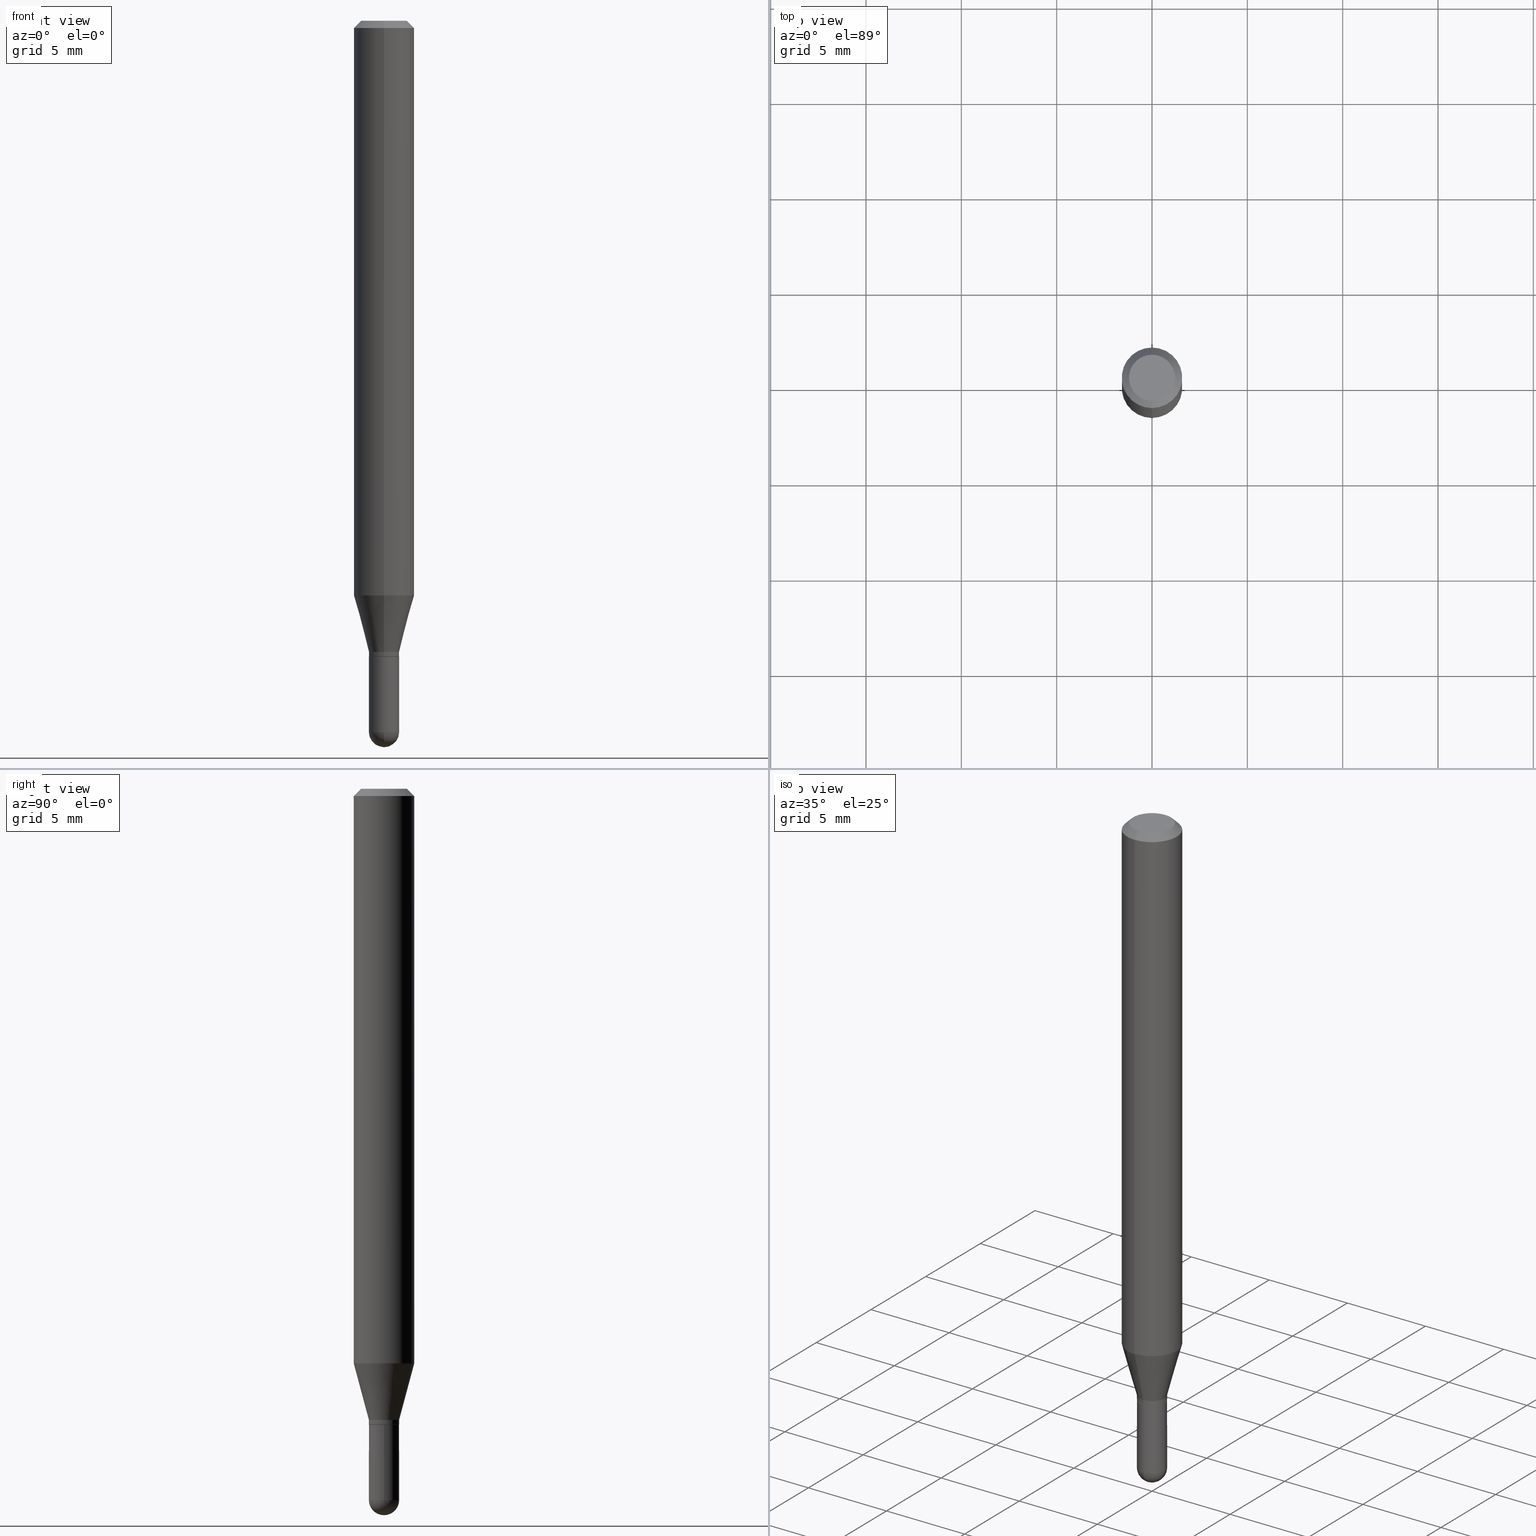
[diagram: canonical four-view strip — front | top / right | iso, engineering-drawing reading convention]
A machine part, canonical four-view strip (front | top / right | iso — engineering-drawing reading convention). The complete STEP part file that produces these views, byte-faithful:
ISO-10303-21;
HEADER;
FILE_DESCRIPTION (( 'STEP AP203' ),
    '1' );
FILE_NAME ('30608.STEP',
    '2024-03-08T15:35:36',
    ( '' ),
    ( '' ),
    'SwSTEP 2.0',
    'SolidWorks 2023',
    '' );
FILE_SCHEMA (( 'CONFIG_CONTROL_DESIGN' ));
ENDSEC;

DATA;
#1 = VERTEX_POINT ( 'NONE', #409 ) ;
#2 =( NAMED_UNIT ( * ) PLANE_ANGLE_UNIT ( ) SI_UNIT ( $, .RADIAN. ) );
#3 = FACE_OUTER_BOUND ( 'NONE', #37, .T. ) ;
#4 = ADVANCED_FACE ( 'NONE', ( #50 ), #368, .T. ) ;
#5 = ORIENTED_EDGE ( 'NONE', *, *, #500, .F. ) ;
#6 = FACE_OUTER_BOUND ( 'NONE', #267, .T. ) ;
#7 = CARTESIAN_POINT ( 'NONE',  ( 3.186393600944843674E-29, -4.549475014519310795E-15, -1.302999999999999936 ) ) ;
#8 = CARTESIAN_POINT ( 'NONE',  ( 4.440892098500914096E-16, 0.06249999999999582279, -1.186373412263473925 ) ) ;
#9 = ORIENTED_EDGE ( 'NONE', *, *, #233, .F. ) ;
#10 = PERSON_AND_ORGANIZATION ( #174, #322 ) ;
#11 = CYLINDRICAL_SURFACE ( 'NONE', #31, 0.03125000000000019429 ) ;
#12 = ORIENTED_EDGE ( 'NONE', *, *, #465, .F. ) ;
#13 = VECTOR ( 'NONE', #492, 39.37007874015748143 ) ;
#14 = DIRECTION ( 'NONE',  ( -2.445468806185136877E-29, 3.491481338843145188E-15, 1.000000000000000000 ) ) ;
#15 = VECTOR ( 'NONE', #259, 39.37007874015749564 ) ;
#16 =( GEOMETRIC_REPRESENTATION_CONTEXT ( 3 ) GLOBAL_UNCERTAINTY_ASSIGNED_CONTEXT ( ( #342 ) ) GLOBAL_UNIT_ASSIGNED_CONTEXT ( ( #274, #2, #34 ) ) REPRESENTATION_CONTEXT ( 'NONE', 'WORKASPACE' ) );
#17 = EDGE_LOOP ( 'NONE', ( #36, #172 ) ) ;
#18 = CARTESIAN_POINT ( 'NONE',  ( 3.186393600944843674E-29, -4.549475014519310795E-15, -1.302999999999999936 ) ) ;
#19 = DIRECTION ( 'NONE',  ( -2.445468806185136597E-29, 3.491481338843145583E-15, 1.000000000000000000 ) ) ;
#20 = DIRECTION ( 'NONE',  ( -6.982962677686265922E-15, -1.000000000000000000, 3.483106191921934765E-15 ) ) ;
#21 = AXIS2_PLACEMENT_3D ( 'NONE', #215, #212, #248 ) ;
#22 = ORIENTED_EDGE ( 'NONE', *, *, #459, .F. ) ;
#23 = APPROVAL_PERSON_ORGANIZATION ( #134, #319, #375 ) ;
#24 = PERSON_AND_ORGANIZATION_ROLE ( 'creator' ) ;
#25 = CARTESIAN_POINT ( 'NONE',  ( 3.589109914430733577E-29, -5.131940237673205338E-15, -1.468750000000000000 ) ) ;
#26 = ORIENTED_EDGE ( 'NONE', *, *, #511, .T. ) ;
#27 = CARTESIAN_POINT ( 'NONE',  ( 3.210847887982025622E-29, -4.584390402197893743E-15, -1.313000000000000389 ) ) ;
#28 = DIRECTION ( 'NONE',  ( -2.445428703718222053E-29, 3.491538767858258180E-15, 1.000000000000000000 ) ) ;
#29 = EDGE_CURVE ( 'NONE', #145, #473, #441, .T. ) ;
#30 = ORIENTED_EDGE ( 'NONE', *, *, #390, .T. ) ;
#31 = AXIS2_PLACEMENT_3D ( 'NONE', #280, #374, #55 ) ;
#32 = CARTESIAN_POINT ( 'NONE',  ( 3.591782309084418816E-29, -5.128113216425869865E-15, -1.468750000000000000 ) ) ;
#33 = CC_DESIGN_PERSON_AND_ORGANIZATION_ASSIGNMENT ( #431, #421, ( #439 ) ) ;
#34 =( NAMED_UNIT ( * ) SI_UNIT ( $, .STERADIAN. ) SOLID_ANGLE_UNIT ( ) );
#35 = ORIENTED_EDGE ( 'NONE', *, *, #455, .F. ) ;
#36 = ORIENTED_EDGE ( 'NONE', *, *, #504, .F. ) ;
#37 = EDGE_LOOP ( 'NONE', ( #137, #479 ) ) ;
#38 = ADVANCED_FACE ( 'NONE', ( #318 ), #402, .T. ) ;
#39 = AXIS2_PLACEMENT_3D ( 'NONE', #185, #218, #108 ) ;
#40 = LINE ( 'NONE', #472, #101 ) ;
#41 = ORIENTED_EDGE ( 'NONE', *, *, #455, .T. ) ;
#42 = ADVANCED_FACE ( 'NONE', ( #323 ), #466, .T. ) ;
#43 = CARTESIAN_POINT ( 'NONE',  ( 3.668143055577308942E-31, -5.237308151787352930E-17, -0.01499999999999990230 ) ) ;
#44 = ORIENTED_EDGE ( 'NONE', *, *, #410, .T. ) ;
#45 = AXIS2_PLACEMENT_3D ( 'NONE', #222, #337, #20 ) ;
#46 = CARTESIAN_POINT ( 'NONE',  ( 4.440892098500919026E-16, 0.06249999999999997224, -0.01500000000000011914 ) ) ;
#47 = CC_DESIGN_PERSON_AND_ORGANIZATION_ASSIGNMENT ( #214, #85, ( #83 ) ) ;
#48 = ORIENTED_EDGE ( 'NONE', *, *, #378, .F. ) ;
#49 = DIRECTION ( 'NONE',  ( 2.438088387897960049E-29, -3.491481338843145188E-15, -1.000000000000000000 ) ) ;
#50 = FACE_OUTER_BOUND ( 'NONE', #255, .T. ) ;
#51 = DIRECTION ( 'NONE',  ( -2.445428703718222053E-29, 3.491538767858258180E-15, 1.000000000000000000 ) ) ;
#52 = ORIENTED_EDGE ( 'NONE', *, *, #403, .T. ) ;
#53 = EDGE_CURVE ( 'NONE', #329, #430, #275, .T. ) ;
#54 = CALENDAR_DATE ( 2024, 8, 3 ) ;
#55 = DIRECTION ( 'NONE',  ( -6.982962677686265922E-15, -1.000000000000000000, 3.491538767858258180E-15 ) ) ;
#56 = CIRCLE ( 'NONE', #477, 0.04750000000000004219 ) ;
#57 = ORIENTED_EDGE ( 'NONE', *, *, #53, .F. ) ;
#58 = DIRECTION ( 'NONE',  ( -4.851104656540959542E-15, -0.7071067811865493491, -0.7071067811865456854 ) ) ;
#59 = DIRECTION ( 'NONE',  ( -6.982962677686265922E-15, -1.000000000000000000, 0.000000000000000000 ) ) ;
#60 = ORIENTED_EDGE ( 'NONE', *, *, #190, .T. ) ;
#61 = LINE ( 'NONE', #103, #332 ) ;
#62 = PERSON_AND_ORGANIZATION_ROLE ( 'classification_officer' ) ;
#63 = DIRECTION ( 'NONE',  ( -6.982962677686265922E-15, -1.000000000000000000, 0.000000000000000000 ) ) ;
#64 = AXIS2_PLACEMENT_3D ( 'NONE', #279, #443, #327 ) ;
#65 = CIRCLE ( 'NONE', #434, 0.03125000000000000694 ) ;
#66 = ADVANCED_FACE ( 'NONE', ( #490 ), #87, .F. ) ;
#67 = DIRECTION ( 'NONE',  ( -2.445428703718222053E-29, 3.491538767858258180E-15, 1.000000000000000000 ) ) ;
#68 = ORIENTED_EDGE ( 'NONE', *, *, #459, .T. ) ;
#69 = EDGE_CURVE ( 'NONE', #240, #179, #372, .T. ) ;
#70 = CARTESIAN_POINT ( 'NONE',  ( -4.364351673553628267E-16, -0.06250000000000417721, -1.186373412263473259 ) ) ;
#71 = ADVANCED_FACE ( 'NONE', ( #380 ), #427, .T. ) ;
#72 = DIRECTION ( 'NONE',  ( -2.445428703718222053E-29, 3.491538767858258180E-15, 1.000000000000000000 ) ) ;
#73 = ORIENTED_EDGE ( 'NONE', *, *, #190, .F. ) ;
#74 = MANIFOLD_SOLID_BREP ( 'Body-Move/Copy2[2]', #469 ) ;
#75 = APPROVAL_PERSON_ORGANIZATION ( #10, #118, #284 ) ;
#76 = ORIENTED_EDGE ( 'NONE', *, *, #511, .F. ) ;
#77 = AXIS2_PLACEMENT_3D ( 'NONE', #429, #228, #388 ) ;
#78 = AXIS2_PLACEMENT_3D ( 'NONE', #446, #82, #203 ) ;
#79 = PERSON_AND_ORGANIZATION ( #174, #322 ) ;
#80 = CARTESIAN_POINT ( 'NONE',  ( -2.182175836776606071E-16, -0.03125000000000523193, -1.468750000000000000 ) ) ;
#81 = ORIENTED_EDGE ( 'NONE', *, *, #114, .T. ) ;
#82 = DIRECTION ( 'NONE',  ( -2.445468806185136597E-29, 3.491481338843145583E-15, 1.000000000000000000 ) ) ;
#83 = PRODUCT_DEFINITION ( 'UNKNOWN', '', #439, #181 ) ;
#84 = CARTESIAN_POINT ( 'NONE',  ( 4.440892098500626162E-16, 0.06250000000000001388, -2.182211729911411609E-16 ) ) ;
#85 = PERSON_AND_ORGANIZATION_ROLE ( 'creator' ) ;
#86 = VECTOR ( 'NONE', #168, 39.37007874015748143 ) ;
#87 = PLANE ( 'NONE',  #353 ) ;
#88 = LOCAL_TIME ( 10, 35, 36.00000000000000000, #415 ) ;
#89 = DIRECTION ( 'NONE',  ( -2.445428703718222053E-29, 3.491538767858258180E-15, 1.000000000000000000 ) ) ;
#90 = ORIENTED_EDGE ( 'NONE', *, *, #500, .T. ) ;
#91 = CARTESIAN_POINT ( 'NONE',  ( 2.220446049250645389E-16, 0.03124999999999564584, -1.302999999999999936 ) ) ;
#92 = LINE ( 'NONE', #494, #246 ) ;
#93 = EDGE_CURVE ( 'NONE', #430, #450, #366, .T. ) ;
#94 = APPROVAL_STATUS ( 'not_yet_approved' ) ;
#95 = PRODUCT_DEFINITION_SHAPE ( 'NONE', 'NONE',  #83 ) ;
#96 = LINE ( 'NONE', #84, #399 ) ;
#97 = DIRECTION ( 'NONE',  ( -6.982962677686265922E-15, -1.000000000000000000, 0.000000000000000000 ) ) ;
#98 = DATE_AND_TIME ( #170, #508 ) ;
#99 = CARTESIAN_POINT ( 'NONE',  ( 3.589109914430733577E-29, -5.131940237673205338E-15, -1.468750000000000000 ) ) ;
#100 = AXIS2_PLACEMENT_3D ( 'NONE', #324, #489, #120 ) ;
#101 = VECTOR ( 'NONE', #146, 39.37007874015748143 ) ;
#102 = EDGE_CURVE ( 'NONE', #498, #450, #127, .T. ) ;
#103 = CARTESIAN_POINT ( 'NONE',  ( -2.147261023388205582E-16, -0.03075000000000458270, -1.313000000000000389 ) ) ;
#104 = DIRECTION ( 'NONE',  ( -2.445428703718222053E-29, 3.491538767858258180E-15, 1.000000000000000000 ) ) ;
#105 = ADVANCED_BREP_SHAPE_REPRESENTATION ( '30608', ( #397, #74, #144 ), #16 ) ;
#106 = VERTEX_POINT ( 'NONE', #453 ) ;
#107 = DATE_AND_TIME ( #384, #156 ) ;
#108 = DIRECTION ( 'NONE',  ( 1.000000000000000000, -6.982962677686261189E-15, 0.000000000000000000 ) ) ;
#109 = AXIS2_PLACEMENT_3D ( 'NONE', #164, #49, #497 ) ;
#110 = DIRECTION ( 'NONE',  ( -1.000000000000000000, 6.982962677686265922E-15, -4.883557194083112340E-29 ) ) ;
#111 = CARTESIAN_POINT ( 'NONE',  ( 3.210847887982025622E-29, -4.584390402197893743E-15, -1.313000000000000389 ) ) ;
#112 = ORIENTED_EDGE ( 'NONE', *, *, #69, .F. ) ;
#113 = CONICAL_SURFACE ( 'NONE', #294, 0.03125000000000019429, 0.2617993877991501295 ) ;
#114 = EDGE_CURVE ( 'NONE', #179, #329, #285, .T. ) ;
#115 = ORIENTED_EDGE ( 'NONE', *, *, #252, .T. ) ;
#116 = AXIS2_PLACEMENT_3D ( 'NONE', #7, #488, #161 ) ;
#117 = ORIENTED_EDGE ( 'NONE', *, *, #474, .F. ) ;
#118 = APPROVAL ( #163, 'UNSPECIFIED' ) ;
#119 = PERSON_AND_ORGANIZATION_ROLE ( 'design_owner' ) ;
#120 = DIRECTION ( 'NONE',  ( 6.982962677686265922E-15, 1.000000000000000000, -3.491538767858258180E-15 ) ) ;
#121 = ORIENTED_EDGE ( 'NONE', *, *, #474, .T. ) ;
#122 = APPLICATION_PROTOCOL_DEFINITION ( 'international standard', 'config_control_design', 1994, #277 ) ;
#123 = DIRECTION ( 'NONE',  ( -2.445468806185136597E-29, 3.491481338843145583E-15, 1.000000000000000000 ) ) ;
#124 = VECTOR ( 'NONE', #460, 39.37007874015748143 ) ;
#125 = DATE_AND_TIME ( #54, #88 ) ;
#126 = CIRCLE ( 'NONE', #21, 0.06250000000000000000 ) ;
#127 = LINE ( 'NONE', #211, #484 ) ;
#128 = CARTESIAN_POINT ( 'NONE',  ( 2.220446049250678915E-16, 0.03124999999999497277, -1.468750000000000000 ) ) ;
#129 = DIRECTION ( 'NONE',  ( 1.000000000000000000, 0.000000000000000000, 0.000000000000000000 ) ) ;
#130 = CARTESIAN_POINT ( 'NONE',  ( -0.03125000000000000000, 2.220446049250313081E-16, -1.537167215704658057E-30 ) ) ;
#131 = VERTEX_POINT ( 'NONE', #173 ) ;
#132 = SPHERICAL_SURFACE ( 'NONE', #256, 0.03125000000000019429 ) ;
#133 = DIRECTION ( 'NONE',  ( -6.982962677686265133E-15, -1.000000000000000000, 3.491538767858257785E-15 ) ) ;
#134 = PERSON_AND_ORGANIZATION ( #174, #322 ) ;
#135 = CARTESIAN_POINT ( 'NONE',  ( -2.396082165746635668E-45, 3.421082675588868902E-31, 9.798209050639849508E-17 ) ) ;
#136 = FACE_OUTER_BOUND ( 'NONE', #452, .T. ) ;
#137 = ORIENTED_EDGE ( 'NONE', *, *, #192, .T. ) ;
#138 = CARTESIAN_POINT ( 'NONE',  ( 3.186393600944843674E-29, -4.549475014519310795E-15, -1.302999999999999936 ) ) ;
#139 = DIRECTION ( 'NONE',  ( -2.445428703718222053E-29, 3.491538767858258180E-15, 1.000000000000000000 ) ) ;
#140 = AXIS2_PLACEMENT_3D ( 'NONE', #201, #356, #405 ) ;
#141 = ADVANCED_FACE ( 'NONE', ( #416 ), #132, .T. ) ;
#142 = CIRCLE ( 'NONE', #320, 0.03125000000000019429 ) ;
#143 = ORIENTED_EDGE ( 'NONE', *, *, #410, .F. ) ;
#144 = AXIS2_PLACEMENT_3D ( 'NONE', #480, #330, #129 ) ;
#145 = VERTEX_POINT ( 'NONE', #335 ) ;
#146 = DIRECTION ( 'NONE',  ( -2.445468806185136877E-29, 3.491481338843145188E-15, 1.000000000000000000 ) ) ;
#147 = ORIENTED_EDGE ( 'NONE', *, *, #378, .T. ) ;
#148 = VECTOR ( 'NONE', #139, 39.37007874015748143 ) ;
#149 = SECURITY_CLASSIFICATION ( '', '', #463 ) ;
#150 = ADVANCED_FACE ( 'NONE', ( #3 ), #481, .F. ) ;
#151 = LENGTH_MEASURE_WITH_UNIT ( LENGTH_MEASURE( 0.02539999999999999897 ), #200 );
#152 = VERTEX_POINT ( 'NONE', #80 ) ;
#153 = ORIENTED_EDGE ( 'NONE', *, *, #343, .F. ) ;
#154 = EDGE_LOOP ( 'NONE', ( #491, #68, #418, #57 ) ) ;
#155 = CIRCLE ( 'NONE', #458, 0.03125000000000019429 ) ;
#156 = LOCAL_TIME ( 10, 35, 36.00000000000000000, #223 ) ;
#157 = DIRECTION ( 'NONE',  ( -2.445428703718222053E-29, 3.491538767858258180E-15, 1.000000000000000000 ) ) ;
#158 = PLANE ( 'NONE',  #100 ) ;
#159 = DIRECTION ( 'NONE',  ( 1.000000000000000000, -6.982962677686265922E-15, 4.883557194083112901E-29 ) ) ;
#160 = COORDINATED_UNIVERSAL_TIME_OFFSET ( 5, 0, .BEHIND. ) ;
#161 = DIRECTION ( 'NONE',  ( -6.982962677686265922E-15, -1.000000000000000000, 0.000000000000000000 ) ) ;
#162 = CARTESIAN_POINT ( 'NONE',  ( 0.03125000000000000694, -5.074431690841155672E-15, -1.468750000000000000 ) ) ;
#163 = APPROVAL_STATUS ( 'not_yet_approved' ) ;
#164 = CARTESIAN_POINT ( 'NONE',  ( 2.182175836777279315E-16, 0.03124999999999541686, -1.313000000000000167 ) ) ;
#165 = ORIENTED_EDGE ( 'NONE', *, *, #401, .T. ) ;
#166 = CIRCLE ( 'NONE', #467, 0.03125000000000019429 ) ;
#167 = CARTESIAN_POINT ( 'NONE',  ( 3.668143055577308942E-31, -5.237308151787352930E-17, -0.01499999999999990230 ) ) ;
#168 = DIRECTION ( 'NONE',  ( 4.937700262164543309E-15, 0.7071067811865444641, -0.7071067811865505703 ) ) ;
#169 = CLOSED_SHELL ( 'NONE', ( #436, #141, #150, #398, #4 ) ) ;
#170 = CALENDAR_DATE ( 2024, 8, 3 ) ;
#171 = DIRECTION ( 'NONE',  ( 5.024295867788190974E-15, 0.7071067811865681119, 0.7071067811865270336 ) ) ;
#172 = ORIENTED_EDGE ( 'NONE', *, *, #29, .F. ) ;
#173 = CARTESIAN_POINT ( 'NONE',  ( 0.03125000000000000000, -4.802532581578746433E-15, -1.313000000000000167 ) ) ;
#174 = PERSON ( 'UNSPECIFIED', 'UNSPECIFIED', 'UNSPECIFIED', ('UNSPECIFIED'), ('UNSPECIFIED'), ('UNSPECIFIED') ) ;
#175 = CARTESIAN_POINT ( 'NONE',  ( 3.589109914430733577E-29, -5.131940237673205338E-15, -1.468750000000000000 ) ) ;
#176 = EDGE_CURVE ( 'NONE', #430, #329, #126, .T. ) ;
#177 = DIRECTION ( 'NONE',  ( 1.000000000000000000, -6.982962677686261189E-15, 0.000000000000000000 ) ) ;
#178 = CIRCLE ( 'NONE', #39, 0.03125000000000000694 ) ;
#179 = VERTEX_POINT ( 'NONE', #363 ) ;
#180 = CARTESIAN_POINT ( 'NONE',  ( 3.591782309084418816E-29, -5.128113216425869865E-15, -1.468750000000000000 ) ) ;
#181 = DESIGN_CONTEXT ( 'detailed design', #277, 'design' ) ;
#182 = ADVANCED_FACE ( 'NONE', ( #442 ), #11, .T. ) ;
#183 = DIRECTION ( 'NONE',  ( 1.000000000000000000, -6.982962677686261189E-15, 0.000000000000000000 ) ) ;
#184 = VERTEX_POINT ( 'NONE', #328 ) ;
#185 = CARTESIAN_POINT ( 'NONE',  ( 3.591782309084418816E-29, -5.128113216425869865E-15, -1.468750000000000000 ) ) ;
#186 = VECTOR ( 'NONE', #14, 39.37007874015748143 ) ;
#187 = ORIENTED_EDGE ( 'NONE', *, *, #465, .T. ) ;
#188 = DIRECTION ( 'NONE',  ( -2.445468806185136597E-29, 3.491481338843145583E-15, 1.000000000000000000 ) ) ;
#189 = VERTEX_POINT ( 'NONE', #209 ) ;
#190 = EDGE_CURVE ( 'NONE', #317, #106, #207, .T. ) ;
#191 = ORIENTED_EDGE ( 'NONE', *, *, #476, .T. ) ;
#192 = EDGE_CURVE ( 'NONE', #131, #106, #311, .T. ) ;
#193 = DIRECTION ( 'NONE',  ( -6.982962677686265922E-15, -1.000000000000000000, 3.483106191921934765E-15 ) ) ;
#194 = DIRECTION ( 'NONE',  ( -2.445428703718221492E-29, 3.491538767858258180E-15, 1.000000000000000000 ) ) ;
#195 = AXIS2_PLACEMENT_3D ( 'NONE', #167, #422, #297 ) ;
#196 = AXIS2_PLACEMENT_3D ( 'NONE', #43, #358, #204 ) ;
#197 = AXIS2_PLACEMENT_3D ( 'NONE', #111, #315, #268 ) ;
#198 = CARTESIAN_POINT ( 'NONE',  ( 3.209625173630166357E-29, -4.582644632813964477E-15, -1.312500000000000222 ) ) ;
#199 = DIRECTION ( 'NONE',  ( -6.982962677686265922E-15, -1.000000000000000000, 0.000000000000000000 ) ) ;
#200 =( LENGTH_UNIT ( ) NAMED_UNIT ( * ) SI_UNIT ( $, .METRE. ) );
#201 = CARTESIAN_POINT ( 'NONE',  ( 0.000000000000000000, 0.000000000000000000, 0.000000000000000000 ) ) ;
#202 = CC_DESIGN_PERSON_AND_ORGANIZATION_ASSIGNMENT ( #79, #119, ( #291 ) ) ;
#203 = DIRECTION ( 'NONE',  ( 1.000000000000000000, -6.982962677686266711E-15, 4.876176775795935793E-29 ) ) ;
#204 = DIRECTION ( 'NONE',  ( 6.982962677686265922E-15, 1.000000000000000000, -3.483106191921934765E-15 ) ) ;
#205 = ORIENTED_EDGE ( 'NONE', *, *, #176, .T. ) ;
#206 = CIRCLE ( 'NONE', #224, 0.03125000000000019429 ) ;
#207 = LINE ( 'NONE', #130, #186 ) ;
#208 = PERSON_AND_ORGANIZATION ( #174, #322 ) ;
#209 = CARTESIAN_POINT ( 'NONE',  ( 3.664194617297177037E-29, -5.242962540135721781E-15, -1.500000000000000222 ) ) ;
#210 = ADVANCED_FACE ( 'NONE', ( #454 ), #113, .T. ) ;
#211 = CARTESIAN_POINT ( 'NONE',  ( -4.287811248607204268E-16, -0.06250000000000006939, -0.01499999999999968373 ) ) ;
#212 = DIRECTION ( 'NONE',  ( -2.445428703718222053E-29, 3.491538767858258180E-15, 1.000000000000000000 ) ) ;
#213 = EDGE_LOOP ( 'NONE', ( #437, #289, #187, #9 ) ) ;
#214 = PERSON_AND_ORGANIZATION ( #174, #322 ) ;
#215 = CARTESIAN_POINT ( 'NONE',  ( 2.901191595677230162E-29, -4.142268762074205999E-15, -1.186373412263473703 ) ) ;
#216 = AXIS2_PLACEMENT_3D ( 'NONE', #241, #157, #199 ) ;
#217 = ORIENTED_EDGE ( 'NONE', *, *, #357, .F. ) ;
#218 = DIRECTION ( 'NONE',  ( -2.445468806185136597E-29, 3.491481338843145583E-15, 1.000000000000000000 ) ) ;
#219 = DIMENSIONAL_EXPONENTS ( 1.000000000000000000, 0.000000000000000000, 0.000000000000000000, 0.000000000000000000, 0.000000000000000000, 0.000000000000000000, 0.000000000000000000 ) ;
#220 = EDGE_CURVE ( 'NONE', #145, #240, #92, .T. ) ;
#221 = APPROVAL_DATE_TIME ( #98, #319 ) ;
#222 = CARTESIAN_POINT ( 'NONE',  ( 3.668143055577308942E-31, -5.237308151787352930E-17, -0.01499999999999990230 ) ) ;
#223 = COORDINATED_UNIVERSAL_TIME_OFFSET ( 5, 0, .BEHIND. ) ;
#224 = AXIS2_PLACEMENT_3D ( 'NONE', #138, #67, #301 ) ;
#225 = DIRECTION ( 'NONE',  ( -2.445468806185136597E-29, 3.491481338843145583E-15, 1.000000000000000000 ) ) ;
#226 = CC_DESIGN_SECURITY_CLASSIFICATION ( #149, ( #439 ) ) ;
#227 = ORIENTED_EDGE ( 'NONE', *, *, #373, .T. ) ;
#228 = DIRECTION ( 'NONE',  ( -2.445428703718222053E-29, 3.491538767858258180E-15, 1.000000000000000000 ) ) ;
#229 = ORIENTED_EDGE ( 'NONE', *, *, #352, .T. ) ;
#230 = CARTESIAN_POINT ( 'NONE',  ( 3.186393600944843674E-29, -4.549475014519310795E-15, -1.302999999999999936 ) ) ;
#231 = ORIENTED_EDGE ( 'NONE', *, *, #252, .F. ) ;
#232 = CARTESIAN_POINT ( 'NONE',  ( 3.589109914430733577E-29, -5.131940237673205338E-15, -1.468750000000000000 ) ) ;
#233 = EDGE_CURVE ( 'NONE', #1, #325, #408, .T. ) ;
#234 = CONICAL_SURFACE ( 'NONE', #507, 0.03074999999999999956, 0.7853981633974739252 ) ;
#235 = VERTEX_POINT ( 'NONE', #128 ) ;
#236 = EDGE_LOOP ( 'NONE', ( #35, #44, #475, #364 ) ) ;
#237 = CARTESIAN_POINT ( 'NONE',  ( 3.668143055577308942E-31, -5.237308151787352930E-17, -0.01499999999999990230 ) ) ;
#238 = EDGE_LOOP ( 'NONE', ( #52, #81, #302, #351 ) ) ;
#239 = AXIS2_PLACEMENT_3D ( 'NONE', #263, #104, #63 ) ;
#240 = VERTEX_POINT ( 'NONE', #286 ) ;
#241 = CARTESIAN_POINT ( 'NONE',  ( 3.210847887982025622E-29, -4.584390402197893743E-15, -1.313000000000000389 ) ) ;
#242 = ORIENTED_EDGE ( 'NONE', *, *, #69, .T. ) ;
#243 = EDGE_LOOP ( 'NONE', ( #143, #41, #440, #310 ) ) ;
#244 = DIRECTION ( 'NONE',  ( -6.982962677686265922E-15, -1.000000000000000000, 0.000000000000000000 ) ) ;
#245 = CARTESIAN_POINT ( 'NONE',  ( 0.000000000000000000, 0.000000000000000000, 0.000000000000000000 ) ) ;
#246 = VECTOR ( 'NONE', #171, 39.37007874015748143 ) ;
#247 = CARTESIAN_POINT ( 'NONE',  ( 3.210847887982025622E-29, -4.584390402197893743E-15, -1.313000000000000389 ) ) ;
#248 = DIRECTION ( 'NONE',  ( -6.982962677686265922E-15, -1.000000000000000000, 4.370956789862821150E-15 ) ) ;
#249 = ORIENTED_EDGE ( 'NONE', *, *, #102, .F. ) ;
#250 = CYLINDRICAL_SURFACE ( 'NONE', #354, 0.06250000000000001388 ) ;
#251 = ORIENTED_EDGE ( 'NONE', *, *, #424, .T. ) ;
#252 = EDGE_CURVE ( 'NONE', #329, #325, #96, .T. ) ;
#253 = DIRECTION ( 'NONE',  ( 1.839019923739599526E-15, 0.2588190451025248473, 0.9659258262890673130 ) ) ;
#254 = CYLINDRICAL_SURFACE ( 'NONE', #283, 0.03125000000000019429 ) ;
#255 = EDGE_LOOP ( 'NONE', ( #73, #191, #30, #121, #153 ) ) ;
#256 = AXIS2_PLACEMENT_3D ( 'NONE', #232, #159, #97 ) ;
#257 = APPROVAL_STATUS ( 'not_yet_approved' ) ;
#258 = AXIS2_PLACEMENT_3D ( 'NONE', #237, #72, #193 ) ;
#259 = DIRECTION ( 'NONE',  ( -1.807323732225328562E-15, -0.2588190451025179639, 0.9659258262890689783 ) ) ;
#260 = CARTESIAN_POINT ( 'NONE',  ( -4.364351673553916694E-16, -0.06250000000000001388, 2.182211729911411609E-16 ) ) ;
#261 = DIRECTION ( 'NONE',  ( 1.000000000000000000, -7.105427357601001070E-15, 4.926315508542082329E-29 ) ) ;
#262 = PERSON_AND_ORGANIZATION ( #174, #322 ) ;
#263 = CARTESIAN_POINT ( 'NONE',  ( 3.209625173630166357E-29, -4.582644632813964477E-15, -1.312500000000000222 ) ) ;
#264 = AXIS2_PLACEMENT_3D ( 'NONE', #266, #391, #426 ) ;
#265 = CARTESIAN_POINT ( 'NONE',  ( -2.182175836776652910E-16, -0.03125000000000474620, -1.302999999999999936 ) ) ;
#266 = CARTESIAN_POINT ( 'NONE',  ( 3.210900542521084585E-29, -4.584314997901050598E-15, -1.313000000000000167 ) ) ;
#267 = EDGE_LOOP ( 'NONE', ( #147, #251 ) ) ;
#268 = DIRECTION ( 'NONE',  ( -6.982962677686265922E-15, -1.000000000000000000, 0.000000000000000000 ) ) ;
#269 = ORIENTED_EDGE ( 'NONE', *, *, #220, .T. ) ;
#270 = ORIENTED_EDGE ( 'NONE', *, *, #93, .F. ) ;
#271 = CC_DESIGN_DATE_AND_TIME_ASSIGNMENT ( #107, #456, ( #149 ) ) ;
#272 = DIRECTION ( 'NONE',  ( 1.000000000000000000, -6.982962677686261189E-15, 0.000000000000000000 ) ) ;
#273 = CIRCLE ( 'NONE', #45, 0.06250000000000001388 ) ;
#274 =( CONVERSION_BASED_UNIT ( 'INCH', #151 ) LENGTH_UNIT ( ) NAMED_UNIT ( #219 ) );
#275 = CIRCLE ( 'NONE', #64, 0.06250000000000000000 ) ;
#276 = AXIS2_PLACEMENT_3D ( 'NONE', #432, #19, #470 ) ;
#277 = APPLICATION_CONTEXT ( 'configuration controlled 3d designs of mechanical parts and assemblies' ) ;
#278 = ADVANCED_FACE ( 'NONE', ( #334 ), #250, .T. ) ;
#279 = CARTESIAN_POINT ( 'NONE',  ( 2.901191595677230162E-29, -4.142268762074205999E-15, -1.186373412263473703 ) ) ;
#280 = CARTESIAN_POINT ( 'NONE',  ( 0.000000000000000000, 0.000000000000000000, 0.000000000000000000 ) ) ;
#281 = FACE_OUTER_BOUND ( 'NONE', #341, .T. ) ;
#282 = ORIENTED_EDGE ( 'NONE', *, *, #93, .T. ) ;
#283 = AXIS2_PLACEMENT_3D ( 'NONE', #245, #89, #417 ) ;
#284 = APPROVAL_ROLE ( '' ) ;
#285 = LINE ( 'NONE', #91, #370 ) ;
#286 = CARTESIAN_POINT ( 'NONE',  ( 2.220446049250639965E-16, 0.03124999999999550360, -1.312500000000000222 ) ) ;
#287 = APPROVAL_ROLE ( '' ) ;
#288 = DIRECTION ( 'NONE',  ( -2.445428703718222053E-29, 3.491538767858258180E-15, 1.000000000000000000 ) ) ;
#289 = ORIENTED_EDGE ( 'NONE', *, *, #102, .T. ) ;
#290 = ADVANCED_FACE ( 'NONE', ( #281 ), #383, .T. ) ;
#291 = PRODUCT ( '30608', '30608', '', ( #483 ) ) ;
#292 = COORDINATED_UNIVERSAL_TIME_OFFSET ( 5, 0, .BEHIND. ) ;
#293 = COORDINATED_UNIVERSAL_TIME_OFFSET ( 5, 0, .BEHIND. ) ;
#294 = AXIS2_PLACEMENT_3D ( 'NONE', #18, #331, #444 ) ;
#295 = CARTESIAN_POINT ( 'NONE',  ( 3.591782309084418816E-29, -5.128113216425869865E-15, -1.468750000000000000 ) ) ;
#296 = CALENDAR_DATE ( 2024, 8, 3 ) ;
#297 = DIRECTION ( 'NONE',  ( 6.982962677686265922E-15, 1.000000000000000000, -3.483106191921934765E-15 ) ) ;
#298 = FACE_OUTER_BOUND ( 'NONE', #411, .T. ) ;
#299 = EDGE_LOOP ( 'NONE', ( #249, #48, #487, #26 ) ) ;
#300 = DATE_AND_TIME ( #296, #486 ) ;
#301 = DIRECTION ( 'NONE',  ( -6.982962677686265922E-15, -1.000000000000000000, 0.000000000000000000 ) ) ;
#302 = ORIENTED_EDGE ( 'NONE', *, *, #176, .F. ) ;
#303 = CIRCLE ( 'NONE', #264, 0.03125000000000000000 ) ;
#304 = DIRECTION ( 'NONE',  ( 7.105427357601001859E-15, 1.000000000000000000, 0.000000000000000000 ) ) ;
#305 = ADVANCED_FACE ( 'NONE', ( #447 ), #254, .T. ) ;
#306 = CARTESIAN_POINT ( 'NONE',  ( -3.773273898774342241E-16, -0.04750000000000004219, 2.638301819796658740E-16 ) ) ;
#307 = EDGE_LOOP ( 'NONE', ( #205, #115, #12, #270 ) ) ;
#308 = ADVANCED_FACE ( 'NONE', ( #404 ), #438, .T. ) ;
#309 = ORIENTED_EDGE ( 'NONE', *, *, #357, .T. ) ;
#310 = ORIENTED_EDGE ( 'NONE', *, *, #373, .F. ) ;
#311 = CIRCLE ( 'NONE', #371, 0.03125000000000000000 ) ;
#312 = APPROVAL_PERSON_ORGANIZATION ( #208, #482, #287 ) ;
#313 = LOCAL_TIME ( 10, 35, 36.00000000000000000, #160 ) ;
#314 = ORIENTED_EDGE ( 'NONE', *, *, #379, .T. ) ;
#315 = DIRECTION ( 'NONE',  ( -2.445428703718222053E-29, 3.491538767858258180E-15, 1.000000000000000000 ) ) ;
#316 = ADVANCED_FACE ( 'NONE', ( #6 ), #158, .F. ) ;
#317 = VERTEX_POINT ( 'NONE', #406 ) ;
#318 = FACE_OUTER_BOUND ( 'NONE', #307, .T. ) ;
#319 = APPROVAL ( #257, 'UNSPECIFIED' ) ;
#320 = AXIS2_PLACEMENT_3D ( 'NONE', #175, #110, #509 ) ;
#321 = ORIENTED_EDGE ( 'NONE', *, *, #53, .T. ) ;
#322 = ORGANIZATION ( 'UNSPECIFIED', 'UNSPECIFIED', '' ) ;
#323 = FACE_OUTER_BOUND ( 'NONE', #238, .T. ) ;
#324 = CARTESIAN_POINT ( 'NONE',  ( 3.316907271900979054E-16, 0.04750000000000004219, -1.168570462200681560E-16 ) ) ;
#325 = VERTEX_POINT ( 'NONE', #46 ) ;
#326 = CC_DESIGN_DATE_AND_TIME_ASSIGNMENT ( #407, #365, ( #83 ) ) ;
#327 = DIRECTION ( 'NONE',  ( -6.982962677686265922E-15, -1.000000000000000000, 4.370956789862821150E-15 ) ) ;
#328 = CARTESIAN_POINT ( 'NONE',  ( -2.182175836776652910E-16, -0.03125000000000474620, -1.302999999999999936 ) ) ;
#329 = VERTEX_POINT ( 'NONE', #8 ) ;
#330 = DIRECTION ( 'NONE',  ( 0.000000000000000000, 0.000000000000000000, 1.000000000000000000 ) ) ;
#331 = DIRECTION ( 'NONE',  ( -2.445428703718222053E-29, 3.491538767858258180E-15, 1.000000000000000000 ) ) ;
#332 = VECTOR ( 'NONE', #457, 39.37007874015748143 ) ;
#333 = AXIS2_PLACEMENT_3D ( 'NONE', #198, #396, #350 ) ;
#334 = FACE_OUTER_BOUND ( 'NONE', #413, .T. ) ;
#335 = CARTESIAN_POINT ( 'NONE',  ( 2.202682480856637938E-16, 0.03074999999999541295, -1.313000000000000389 ) ) ;
#336 = DIRECTION ( 'NONE',  ( 1.000000000000000000, -6.982962677686262766E-15, 0.000000000000000000 ) ) ;
#337 = DIRECTION ( 'NONE',  ( -2.445428703718222053E-29, 3.491538767858258180E-15, 1.000000000000000000 ) ) ;
#338 = VERTEX_POINT ( 'NONE', #162 ) ;
#339 = CARTESIAN_POINT ( 'NONE',  ( 2.220446049250326886E-16, 0.03125000000000019429, -1.091105864955712460E-16 ) ) ;
#340 = LINE ( 'NONE', #265, #15 ) ;
#341 = EDGE_LOOP ( 'NONE', ( #433, #269, #5, #395 ) ) ;
#342 = UNCERTAINTY_MEASURE_WITH_UNIT (LENGTH_MEASURE( 1.000000000000000082E-05 ), #274, 'distance_accuracy_value', 'NONE');
#343 = EDGE_CURVE ( 'NONE', #106, #131, #303, .T. ) ;
#344 = APPROVAL_DATE_TIME ( #300, #118 ) ;
#345 = FACE_OUTER_BOUND ( 'NONE', #243, .T. ) ;
#346 = DIRECTION ( 'NONE',  ( -2.445428703718222053E-29, 3.491538767858258180E-15, 1.000000000000000000 ) ) ;
#347 = APPLICATION_CONTEXT ( 'configuration controlled 3d designs of mechanical parts and assemblies' ) ;
#348 = LINE ( 'NONE', #461, #148 ) ;
#349 = VERTEX_POINT ( 'NONE', #501 ) ;
#350 = DIRECTION ( 'NONE',  ( -6.982962677686265922E-15, -1.000000000000000000, 0.000000000000000000 ) ) ;
#351 = ORIENTED_EDGE ( 'NONE', *, *, #414, .F. ) ;
#352 = EDGE_CURVE ( 'NONE', #338, #235, #178, .T. ) ;
#353 = AXIS2_PLACEMENT_3D ( 'NONE', #247, #194, #376 ) ;
#354 = AXIS2_PLACEMENT_3D ( 'NONE', #412, #51, #133 ) ;
#355 = APPLICATION_PROTOCOL_DEFINITION ( 'international standard', 'config_control_design', 1994, #347 ) ;
#356 = DIRECTION ( 'NONE',  ( -2.445428703718222053E-29, 3.491538767858258180E-15, 1.000000000000000000 ) ) ;
#357 = EDGE_CURVE ( 'NONE', #240, #349, #485, .T. ) ;
#358 = DIRECTION ( 'NONE',  ( 2.445428703718222053E-29, -3.491538767858258180E-15, -1.000000000000000000 ) ) ;
#359 = CC_DESIGN_PERSON_AND_ORGANIZATION_ASSIGNMENT ( #262, #62, ( #149 ) ) ;
#360 = AXIS2_PLACEMENT_3D ( 'NONE', #25, #505, #464 ) ;
#361 = CC_DESIGN_APPROVAL ( #319, ( #149 ) ) ;
#362 = APPROVAL_DATE_TIME ( #125, #482 ) ;
#363 = CARTESIAN_POINT ( 'NONE',  ( 3.330669073875781221E-16, 0.03124999999999564237, -1.302999999999999936 ) ) ;
#364 = ORIENTED_EDGE ( 'NONE', *, *, #390, .F. ) ;
#365 = DATE_TIME_ROLE ( 'creation_date' ) ;
#366 = LINE ( 'NONE', #260, #13 ) ;
#367 = CARTESIAN_POINT ( 'NONE',  ( 3.210900542521084585E-29, -4.584314997901050598E-15, -1.313000000000000167 ) ) ;
#368 = CYLINDRICAL_SURFACE ( 'NONE', #78, 0.03125000000000000000 ) ;
#369 = CARTESIAN_POINT ( 'NONE',  ( 3.210847887982025622E-29, -4.584390402197893743E-15, -1.313000000000000389 ) ) ;
#370 = VECTOR ( 'NONE', #253, 39.37007874015747433 ) ;
#371 = AXIS2_PLACEMENT_3D ( 'NONE', #367, #123, #336 ) ;
#372 = LINE ( 'NONE', #339, #124 ) ;
#373 = EDGE_CURVE ( 'NONE', #235, #317, #65, .T. ) ;
#374 = DIRECTION ( 'NONE',  ( -2.445428703718222053E-29, 3.491538767858258180E-15, 1.000000000000000000 ) ) ;
#375 = APPROVAL_ROLE ( '' ) ;
#376 = DIRECTION ( 'NONE',  ( -6.982962677686265922E-15, -1.000000000000000000, 3.491538767858258180E-15 ) ) ;
#377 = DIRECTION ( 'NONE',  ( -6.982962677686265133E-15, -1.000000000000000000, 3.491538767858258180E-15 ) ) ;
#378 = EDGE_CURVE ( 'NONE', #1, #498, #56, .T. ) ;
#379 = EDGE_CURVE ( 'NONE', #349, #184, #348, .T. ) ;
#380 = FACE_OUTER_BOUND ( 'NONE', #213, .T. ) ;
#381 = DIRECTION ( 'NONE',  ( -2.445468806185136597E-29, 3.491481338843145583E-15, 1.000000000000000000 ) ) ;
#382 = PRODUCT_RELATED_PRODUCT_CATEGORY ( 'detail', '', ( #291 ) ) ;
#383 = CONICAL_SURFACE ( 'NONE', #392, 0.03074999999999999956, 0.7853981633974739252 ) ;
#384 = CALENDAR_DATE ( 2024, 8, 3 ) ;
#385 = CIRCLE ( 'NONE', #333, 0.03125000000000019429 ) ;
#386 = SPHERICAL_SURFACE ( 'NONE', #360, 0.03125000000000019429 ) ;
#387 = SHAPE_DEFINITION_REPRESENTATION ( #95, #105 ) ;
#388 = DIRECTION ( 'NONE',  ( -6.982962677686265133E-15, -1.000000000000000000, 3.491538767858258180E-15 ) ) ;
#389 = ORIENTED_EDGE ( 'NONE', *, *, #403, .F. ) ;
#390 = EDGE_CURVE ( 'NONE', #152, #338, #448, .T. ) ;
#391 = DIRECTION ( 'NONE',  ( -2.445468806185136597E-29, 3.491481338843145583E-15, 1.000000000000000000 ) ) ;
#392 = AXIS2_PLACEMENT_3D ( 'NONE', #369, #288, #244 ) ;
#393 = CC_DESIGN_APPROVAL ( #118, ( #439 ) ) ;
#394 = ORIENTED_EDGE ( 'NONE', *, *, #220, .F. ) ;
#395 = ORIENTED_EDGE ( 'NONE', *, *, #401, .F. ) ;
#396 = DIRECTION ( 'NONE',  ( -2.445428703718222053E-29, 3.491538767858258180E-15, 1.000000000000000000 ) ) ;
#397 = MANIFOLD_SOLID_BREP ( 'Body-Move/Copy2[1]', #169 ) ;
#398 = ADVANCED_FACE ( 'NONE', ( #345 ), #386, .T. ) ;
#399 = VECTOR ( 'NONE', #451, 39.37007874015748143 ) ;
#400 = CIRCLE ( 'NONE', #496, 0.03125000000000000694 ) ;
#401 = EDGE_CURVE ( 'NONE', #473, #349, #61, .T. ) ;
#402 = CYLINDRICAL_SURFACE ( 'NONE', #140, 0.06250000000000001388 ) ;
#403 = EDGE_CURVE ( 'NONE', #184, #179, #206, .T. ) ;
#404 = FACE_OUTER_BOUND ( 'NONE', #299, .T. ) ;
#405 = DIRECTION ( 'NONE',  ( -6.982962677686265133E-15, -1.000000000000000000, 3.491538767858257785E-15 ) ) ;
#406 = CARTESIAN_POINT ( 'NONE',  ( -0.03125000000000000694, -4.634169502238429318E-15, -1.468750000000000000 ) ) ;
#407 = DATE_AND_TIME ( #445, #313 ) ;
#408 = LINE ( 'NONE', #499, #86 ) ;
#409 = CARTESIAN_POINT ( 'NONE',  ( 3.840629472727450339E-16, 0.04750000000000004219, -6.786600096686893314E-17 ) ) ;
#410 = EDGE_CURVE ( 'NONE', #189, #235, #166, .T. ) ;
#411 = EDGE_LOOP ( 'NONE', ( #227, #60, #510, #117, #229 ) ) ;
#412 = CARTESIAN_POINT ( 'NONE',  ( 0.000000000000000000, 0.000000000000000000, 0.000000000000000000 ) ) ;
#413 = EDGE_LOOP ( 'NONE', ( #231, #321, #282, #76 ) ) ;
#414 = EDGE_CURVE ( 'NONE', #184, #430, #340, .T. ) ;
#415 = COORDINATED_UNIVERSAL_TIME_OFFSET ( 5, 0, .BEHIND. ) ;
#416 = FACE_OUTER_BOUND ( 'NONE', #236, .T. ) ;
#417 = DIRECTION ( 'NONE',  ( -6.982962677686265922E-15, -1.000000000000000000, 3.491538767858258180E-15 ) ) ;
#418 = ORIENTED_EDGE ( 'NONE', *, *, #414, .T. ) ;
#419 = CIRCLE ( 'NONE', #77, 0.04750000000000004219 ) ;
#420 = DIRECTION ( 'NONE',  ( -2.445428703718222053E-29, 3.491538767858258180E-15, 1.000000000000000000 ) ) ;
#421 = PERSON_AND_ORGANIZATION_ROLE ( 'design_supplier' ) ;
#422 = DIRECTION ( 'NONE',  ( 2.445428703718222053E-29, -3.491538767858258180E-15, -1.000000000000000000 ) ) ;
#423 = CYLINDRICAL_SURFACE ( 'NONE', #276, 0.03125000000000000000 ) ;
#424 = EDGE_CURVE ( 'NONE', #498, #1, #419, .T. ) ;
#425 = PERSON_AND_ORGANIZATION ( #174, #322 ) ;
#426 = DIRECTION ( 'NONE',  ( 1.000000000000000000, -6.982962677686262766E-15, 0.000000000000000000 ) ) ;
#427 = CONICAL_SURFACE ( 'NONE', #195, 0.06250000000000001388, 0.7853981633974473908 ) ;
#428 = CIRCLE ( 'NONE', #258, 0.06250000000000001388 ) ;
#429 = CARTESIAN_POINT ( 'NONE',  ( -2.396082165746635668E-45, 3.421082675588868902E-31, 9.798209050639849508E-17 ) ) ;
#430 = VERTEX_POINT ( 'NONE', #70 ) ;
#431 = PERSON_AND_ORGANIZATION ( #174, #322 ) ;
#432 = CARTESIAN_POINT ( 'NONE',  ( 0.000000000000000000, 0.000000000000000000, 0.000000000000000000 ) ) ;
#433 = ORIENTED_EDGE ( 'NONE', *, *, #504, .T. ) ;
#434 = AXIS2_PLACEMENT_3D ( 'NONE', #295, #381, #183 ) ;
#435 = ADVANCED_FACE ( 'NONE', ( #136 ), #234, .T. ) ;
#436 = ADVANCED_FACE ( 'NONE', ( #298 ), #423, .T. ) ;
#437 = ORIENTED_EDGE ( 'NONE', *, *, #424, .F. ) ;
#438 = CONICAL_SURFACE ( 'NONE', #196, 0.06250000000000001388, 0.7853981633974473908 ) ;
#439 = PRODUCT_DEFINITION_FORMATION_WITH_SPECIFIED_SOURCE ( 'ANY', '', #291, .NOT_KNOWN. ) ;
#440 = ORIENTED_EDGE ( 'NONE', *, *, #476, .F. ) ;
#441 = CIRCLE ( 'NONE', #216, 0.03074999999999999956 ) ;
#442 = FACE_OUTER_BOUND ( 'NONE', #471, .T. ) ;
#443 = DIRECTION ( 'NONE',  ( -2.445428703718222053E-29, 3.491538767858258180E-15, 1.000000000000000000 ) ) ;
#444 = DIRECTION ( 'NONE',  ( -6.982962677686265922E-15, -1.000000000000000000, 0.000000000000000000 ) ) ;
#445 = CALENDAR_DATE ( 2024, 8, 3 ) ;
#446 = CARTESIAN_POINT ( 'NONE',  ( 0.000000000000000000, 0.000000000000000000, 0.000000000000000000 ) ) ;
#447 = FACE_OUTER_BOUND ( 'NONE', #512, .T. ) ;
#448 = CIRCLE ( 'NONE', #495, 0.03125000000000000694 ) ;
#449 = CC_DESIGN_APPROVAL ( #482, ( #83 ) ) ;
#450 = VERTEX_POINT ( 'NONE', #506 ) ;
#451 = DIRECTION ( 'NONE',  ( -2.445428703718222053E-29, 3.491538767858258180E-15, 1.000000000000000000 ) ) ;
#452 = EDGE_LOOP ( 'NONE', ( #394, #503, #165, #217 ) ) ;
#453 = CARTESIAN_POINT ( 'NONE',  ( -0.03125000000000000000, -4.634169502238429318E-15, -1.313000000000000167 ) ) ;
#454 = FACE_OUTER_BOUND ( 'NONE', #154, .T. ) ;
#455 = EDGE_CURVE ( 'NONE', #189, #152, #142, .T. ) ;
#456 = DATE_TIME_ROLE ( 'classification_date' ) ;
#457 = DIRECTION ( 'NONE',  ( -4.937700262164674260E-15, -0.7071067811865632269, 0.7071067811865319186 ) ) ;
#458 = AXIS2_PLACEMENT_3D ( 'NONE', #230, #420, #59 ) ;
#459 = EDGE_CURVE ( 'NONE', #179, #184, #155, .T. ) ;
#460 = DIRECTION ( 'NONE',  ( -2.445428703718222053E-29, 3.491538767858258180E-15, 1.000000000000000000 ) ) ;
#461 = CARTESIAN_POINT ( 'NONE',  ( -2.182175836776971659E-16, -0.03125000000000019429, 1.091105864955712460E-16 ) ) ;
#462 = CARTESIAN_POINT ( 'NONE',  ( -2.147261023388205582E-16, -0.03075000000000458270, -1.313000000000000389 ) ) ;
#463 = SECURITY_CLASSIFICATION_LEVEL ( 'unclassified' ) ;
#464 = DIRECTION ( 'NONE',  ( -6.982962677686265922E-15, -1.000000000000000000, 0.000000000000000000 ) ) ;
#465 = EDGE_CURVE ( 'NONE', #450, #325, #273, .T. ) ;
#466 = CONICAL_SURFACE ( 'NONE', #116, 0.03125000000000019429, 0.2617993877991501295 ) ;
#467 = AXIS2_PLACEMENT_3D ( 'NONE', #99, #261, #304 ) ;
#468 = CIRCLE ( 'NONE', #197, 0.03074999999999999956 ) ;
#469 = CLOSED_SHELL ( 'NONE', ( #182, #290, #71, #38, #42, #210, #278, #308, #316, #66, #435, #305 ) ) ;
#470 = DIRECTION ( 'NONE',  ( 1.000000000000000000, -6.982962677686266711E-15, 4.876176775795935793E-29 ) ) ;
#471 = EDGE_LOOP ( 'NONE', ( #90, #242, #389, #478 ) ) ;
#472 = CARTESIAN_POINT ( 'NONE',  ( 0.03125000000000000000, -2.182175836776958347E-16, 1.523805242436229935E-30 ) ) ;
#473 = VERTEX_POINT ( 'NONE', #462 ) ;
#474 = EDGE_CURVE ( 'NONE', #338, #131, #40, .T. ) ;
#475 = ORIENTED_EDGE ( 'NONE', *, *, #352, .F. ) ;
#476 = EDGE_CURVE ( 'NONE', #317, #152, #400, .T. ) ;
#477 = AXIS2_PLACEMENT_3D ( 'NONE', #135, #28, #377 ) ;
#478 = ORIENTED_EDGE ( 'NONE', *, *, #379, .F. ) ;
#479 = ORIENTED_EDGE ( 'NONE', *, *, #343, .T. ) ;
#480 = CARTESIAN_POINT ( 'NONE',  ( 0.000000000000000000, 0.000000000000000000, 0.000000000000000000 ) ) ;
#481 = PLANE ( 'NONE',  #109 ) ;
#482 = APPROVAL ( #94, 'UNSPECIFIED' ) ;
#483 = MECHANICAL_CONTEXT ( 'NONE', #347, 'mechanical' ) ;
#484 = VECTOR ( 'NONE', #58, 39.37007874015748143 ) ;
#485 = CIRCLE ( 'NONE', #239, 0.03125000000000019429 ) ;
#486 = LOCAL_TIME ( 10, 35, 36.00000000000000000, #292 ) ;
#487 = ORIENTED_EDGE ( 'NONE', *, *, #233, .T. ) ;
#488 = DIRECTION ( 'NONE',  ( -2.445428703718222053E-29, 3.491538767858258180E-15, 1.000000000000000000 ) ) ;
#489 = DIRECTION ( 'NONE',  ( 2.445428703718221492E-29, -3.491538767858258180E-15, -1.000000000000000000 ) ) ;
#490 = FACE_OUTER_BOUND ( 'NONE', #17, .T. ) ;
#491 = ORIENTED_EDGE ( 'NONE', *, *, #114, .F. ) ;
#492 = DIRECTION ( 'NONE',  ( -2.445428703718222053E-29, 3.491538767858258180E-15, 1.000000000000000000 ) ) ;
#493 = CC_DESIGN_PERSON_AND_ORGANIZATION_ASSIGNMENT ( #425, #24, ( #439 ) ) ;
#494 = CARTESIAN_POINT ( 'NONE',  ( 2.184918912462628761E-16, 0.03074999999999541295, -1.313000000000000389 ) ) ;
#495 = AXIS2_PLACEMENT_3D ( 'NONE', #180, #225, #177 ) ;
#496 = AXIS2_PLACEMENT_3D ( 'NONE', #32, #188, #272 ) ;
#497 = DIRECTION ( 'NONE',  ( -1.000000000000000000, 6.982962677686265922E-15, -4.876176775795935793E-29 ) ) ;
#498 = VERTEX_POINT ( 'NONE', #306 ) ;
#499 = CARTESIAN_POINT ( 'NONE',  ( 4.364351673553921131E-16, 0.06249999999999996531, -0.01500000000000011914 ) ) ;
#500 = EDGE_CURVE ( 'NONE', #349, #240, #385, .T. ) ;
#501 = CARTESIAN_POINT ( 'NONE',  ( -2.182175836776658333E-16, -0.03125000000000488498, -1.312500000000000222 ) ) ;
#502 = DIRECTION ( 'NONE',  ( -6.982962677686265922E-15, -1.000000000000000000, 0.000000000000000000 ) ) ;
#503 = ORIENTED_EDGE ( 'NONE', *, *, #29, .T. ) ;
#504 = EDGE_CURVE ( 'NONE', #473, #145, #468, .T. ) ;
#505 = DIRECTION ( 'NONE',  ( 1.000000000000000000, -6.982962677686265922E-15, 4.883557194083112901E-29 ) ) ;
#506 = CARTESIAN_POINT ( 'NONE',  ( -4.364351673553913736E-16, -0.06250000000000006939, -0.01499999999999968373 ) ) ;
#507 = AXIS2_PLACEMENT_3D ( 'NONE', #27, #346, #502 ) ;
#508 = LOCAL_TIME ( 10, 35, 36.00000000000000000, #293 ) ;
#509 = DIRECTION ( 'NONE',  ( -6.982962677686265922E-15, -1.000000000000000000, 0.000000000000000000 ) ) ;
#510 = ORIENTED_EDGE ( 'NONE', *, *, #192, .F. ) ;
#511 = EDGE_CURVE ( 'NONE', #325, #450, #428, .T. ) ;
#512 = EDGE_LOOP ( 'NONE', ( #112, #309, #314, #22 ) ) ;
ENDSEC;
END-ISO-10303-21;
